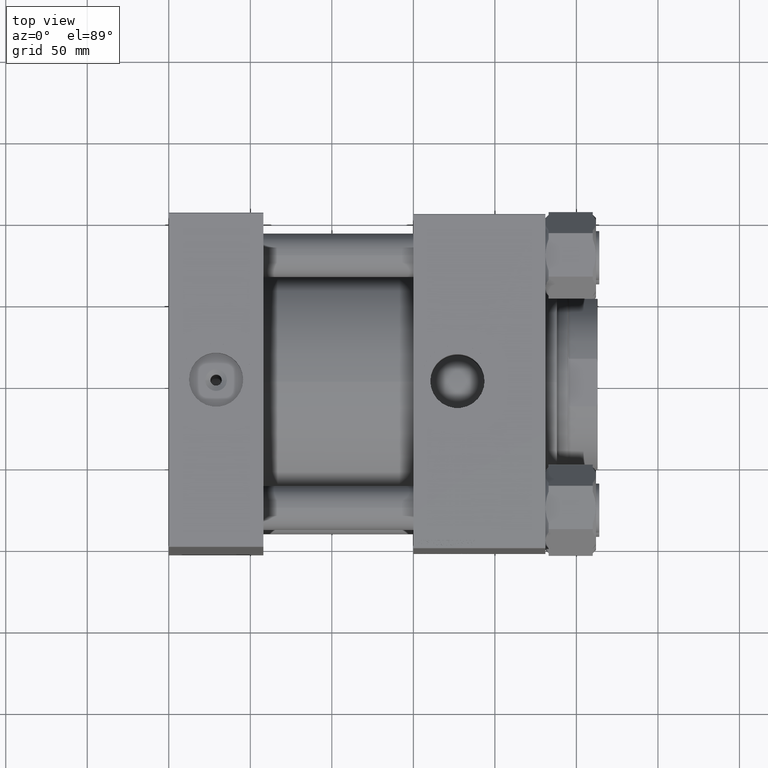
[diagram: clean part render]
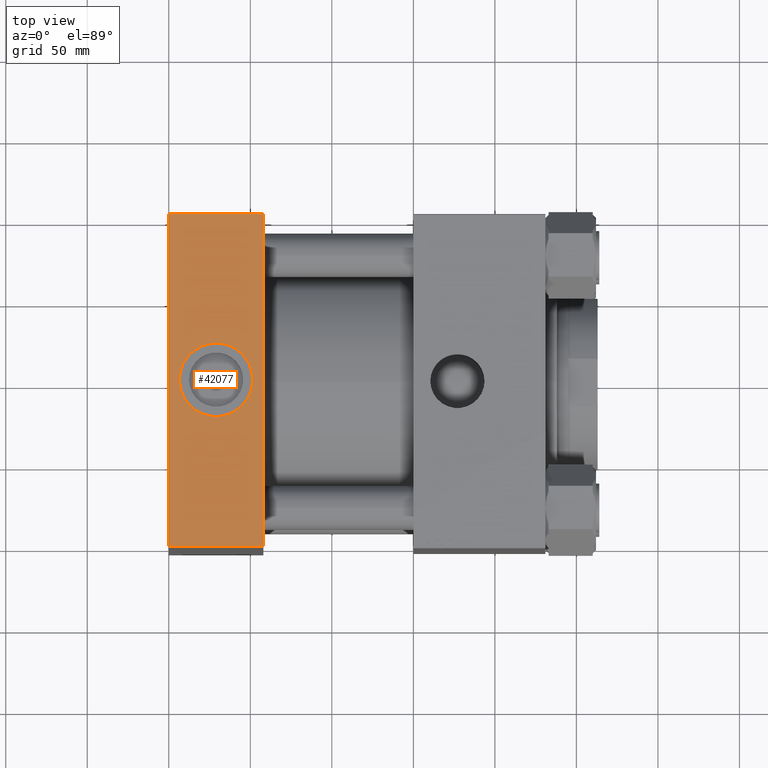
[diagram: same view with one face highlighted and labeled with its STEP entity id]
A machine part, top view. The second image highlights one B-rep face of the part: STEP entity #42077.
In plain terms, the highlighted planar face has unit normal (0, 0, -1).
Its self-contained STEP definition (entity closure, byte-faithful):
#111 = DIRECTION ( 'NONE',  ( 0.000000000000000000, 1.000000000000000000, 1.353930517835557220E-16 ) ) ;
#1739 = AXIS2_PLACEMENT_3D ( 'NONE', #15432, #27930, #111 ) ;
#2157 = LINE ( 'NONE', #17740, #24966 ) ;
#2578 = ORIENTED_EDGE ( 'NONE', *, *, #27673, .T. ) ;
#3924 = EDGE_LOOP ( 'NONE', ( #47624, #2578, #43545, #46059 ) ) ;
#7063 = CARTESIAN_POINT ( 'NONE',  ( 0.000000000000000000, 101.9999999999999574, 148.5000000000000000 ) ) ;
#7108 = AXIS2_PLACEMENT_3D ( 'NONE', #18400, #33975, #26823 ) ;
#7739 = VERTEX_POINT ( 'NONE', #20019 ) ;
#7946 = LINE ( 'NONE', #34758, #19369 ) ;
#8417 = EDGE_CURVE ( 'NONE', #38425, #7739, #29115, .T. ) ;
#12342 = FACE_BOUND ( 'NONE', #33497, .T. ) ;
#13402 = AXIS2_PLACEMENT_3D ( 'NONE', #39269, #27258, #35176 ) ;
#15065 = VECTOR ( 'NONE', #17311, 1000.000000000000000 ) ;
#15208 = DIRECTION ( 'NONE',  ( 0.000000000000000000, -1.000000000000000000, -1.353930517835556973E-16 ) ) ;
#15347 = CARTESIAN_POINT ( 'NONE',  ( 51.50000000000000711, -1.490169776192759932E-14, 148.4999999999999716 ) ) ;
#15432 = CARTESIAN_POINT ( 'NONE',  ( 58.00000000000000000, 102.5000000000000142, 148.5000000000000000 ) ) ;
#16169 = PLANE ( 'NONE',  #1739 ) ;
#16402 = VERTEX_POINT ( 'NONE', #7063 ) ;
#17311 = DIRECTION ( 'NONE',  ( 0.000000000000000000, -1.000000000000000000, -1.353930517835556973E-16 ) ) ;
#17740 = CARTESIAN_POINT ( 'NONE',  ( 0.000000000000000000, 101.9999999999999574, 148.5000000000000000 ) ) ;
#18219 = CARTESIAN_POINT ( 'NONE',  ( 58.00000000000000000, -101.9999999999999574, 148.4999999999999716 ) ) ;
#18400 = CARTESIAN_POINT ( 'NONE',  ( 29.00000000000000000, -1.490169776192759932E-14, 148.4999999999999716 ) ) ;
#19369 = VECTOR ( 'NONE', #46260, 1000.000000000000000 ) ;
#19949 = CIRCLE ( 'NONE', #13402, 22.50000000000000355 ) ;
#20019 = CARTESIAN_POINT ( 'NONE',  ( 6.499999999999995559, -1.214624246384605376E-14, 148.4999999999999716 ) ) ;
#20895 = ORIENTED_EDGE ( 'NONE', *, *, #21469, .F. ) ;
#21299 = EDGE_CURVE ( 'NONE', #16402, #42599, #28801, .T. ) ;
#21469 = EDGE_CURVE ( 'NONE', #7739, #38425, #19949, .T. ) ;
#22365 = CARTESIAN_POINT ( 'NONE',  ( 58.00000000000000000, 102.5000000000000142, 148.5000000000000000 ) ) ;
#24524 = EDGE_CURVE ( 'NONE', #43888, #16402, #2157, .T. ) ;
#24966 = VECTOR ( 'NONE', #45072, 1000.000000000000000 ) ;
#26823 = DIRECTION ( 'NONE',  ( 1.000000000000000000, 0.000000000000000000, 0.000000000000000000 ) ) ;
#27258 = DIRECTION ( 'NONE',  ( 0.000000000000000000, 0.000000000000000000, 1.000000000000000000 ) ) ;
#27673 = EDGE_CURVE ( 'NONE', #42599, #48025, #7946, .T. ) ;
#27930 = DIRECTION ( 'NONE',  ( 0.000000000000000000, 1.353930517835557220E-16, -1.000000000000000000 ) ) ;
#28058 = CARTESIAN_POINT ( 'NONE',  ( 0.000000000000000000, 102.5000000000000142, 148.5000000000000000 ) ) ;
#28801 = LINE ( 'NONE', #28058, #15065 ) ;
#29115 = CIRCLE ( 'NONE', #7108, 22.50000000000000355 ) ;
#32126 = EDGE_CURVE ( 'NONE', #43888, #48025, #42285, .T. ) ;
#33497 = EDGE_LOOP ( 'NONE', ( #40647, #20895 ) ) ;
#33975 = DIRECTION ( 'NONE',  ( 0.000000000000000000, 0.000000000000000000, 1.000000000000000000 ) ) ;
#34758 = CARTESIAN_POINT ( 'NONE',  ( 58.00000000000000000, -101.9999999999999574, 148.4999999999999716 ) ) ;
#35176 = DIRECTION ( 'NONE',  ( 1.000000000000000000, 0.000000000000000000, 0.000000000000000000 ) ) ;
#35775 = CARTESIAN_POINT ( 'NONE',  ( 0.000000000000000000, -101.9999999999999574, 148.4999999999999716 ) ) ;
#38425 = VERTEX_POINT ( 'NONE', #15347 ) ;
#39269 = CARTESIAN_POINT ( 'NONE',  ( 29.00000000000000000, -1.490169776192759932E-14, 148.4999999999999716 ) ) ;
#39433 = FACE_OUTER_BOUND ( 'NONE', #3924, .T. ) ;
#40647 = ORIENTED_EDGE ( 'NONE', *, *, #8417, .F. ) ;
#42077 = ADVANCED_FACE ( 'NONE', ( #12342, #39433 ), #16169, .F. ) ;
#42285 = LINE ( 'NONE', #22365, #44807 ) ;
#42599 = VERTEX_POINT ( 'NONE', #35775 ) ;
#43545 = ORIENTED_EDGE ( 'NONE', *, *, #32126, .F. ) ;
#43888 = VERTEX_POINT ( 'NONE', #44048 ) ;
#44048 = CARTESIAN_POINT ( 'NONE',  ( 58.00000000000000000, 101.9999999999999574, 148.5000000000000000 ) ) ;
#44807 = VECTOR ( 'NONE', #15208, 1000.000000000000000 ) ;
#45072 = DIRECTION ( 'NONE',  ( -1.000000000000000000, 0.000000000000000000, 0.000000000000000000 ) ) ;
#46059 = ORIENTED_EDGE ( 'NONE', *, *, #24524, .T. ) ;
#46260 = DIRECTION ( 'NONE',  ( 1.000000000000000000, 0.000000000000000000, 0.000000000000000000 ) ) ;
#47624 = ORIENTED_EDGE ( 'NONE', *, *, #21299, .T. ) ;
#48025 = VERTEX_POINT ( 'NONE', #18219 ) ;